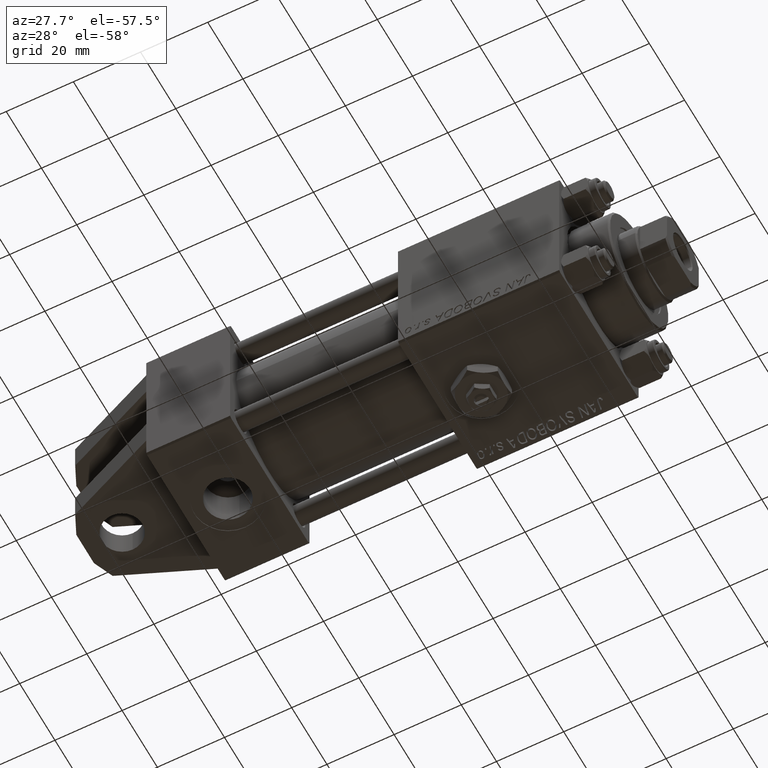
[diagram: clean part render]
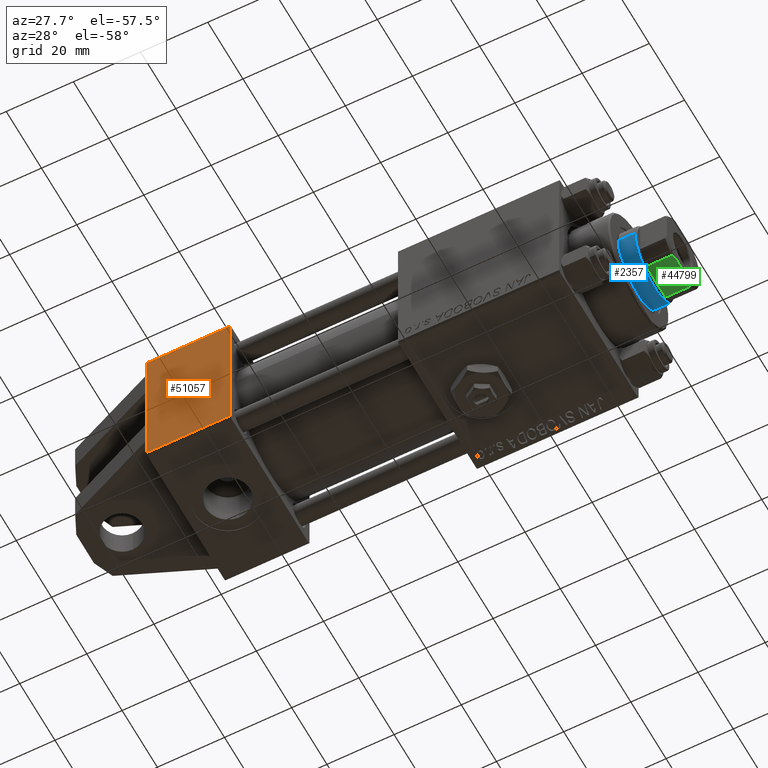
[diagram: same view with three faces highlighted in distinct colors, each labeled with its STEP entity id]
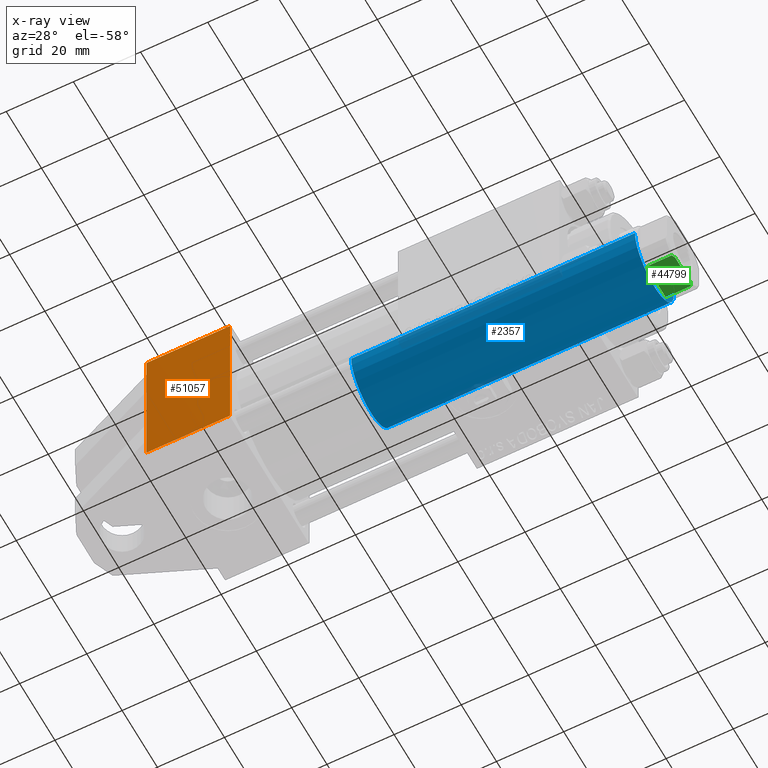
[diagram: x-ray of the same camera — body ghosted, the three highlighted faces saturated]
A machine part, auxiliary view with three faces highlighted in distinct colors.
The next image is the same camera in x-ray (body ghosted, the three faces saturated) — at least one of them is partly hidden behind the body in this view.
Their STEP definitions:

[orange] entity #51057 — the highlighted planar face has unit normal (0, -1, -0).
#508 = CARTESIAN_POINT ( 'NONE',  ( 0.000000000000000000, -21.99999999999998579, -22.50000000000000711 ) ) ;
#1313 = VERTEX_POINT ( 'NONE', #51101 ) ;
#1370 = CARTESIAN_POINT ( 'NONE',  ( 25.00000000000000000, 22.50000000000000000, -22.49999999999999645 ) ) ;
#1999 = VERTEX_POINT ( 'NONE', #12672 ) ;
#2613 = FACE_OUTER_BOUND ( 'NONE', #47206, .T. ) ;
#2723 = VERTEX_POINT ( 'NONE', #24300 ) ;
#2766 = ORIENTED_EDGE ( 'NONE', *, *, #23690, .F. ) ;
#5197 = LINE ( 'NONE', #20369, #19236 ) ;
#5562 = LINE ( 'NONE', #16544, #6047 ) ;
#6047 = VECTOR ( 'NONE', #41105, 1000.000000000000000 ) ;
#6101 = VECTOR ( 'NONE', #41876, 1000.000000000000000 ) ;
#6674 = ORIENTED_EDGE ( 'NONE', *, *, #25922, .T. ) ;
#6809 = PLANE ( 'NONE',  #18628 ) ;
#7522 = EDGE_CURVE ( 'NONE', #49364, #38472, #28178, .T. ) ;
#8836 = DIRECTION ( 'NONE',  ( 0.000000000000000000, -1.000000000000000000, -2.312964634635742957E-16 ) ) ;
#9394 = CARTESIAN_POINT ( 'NONE',  ( 0.000000000000000000, -16.00000000000000000, -22.50000000000000711 ) ) ;
#10464 = CARTESIAN_POINT ( 'NONE',  ( 0.000000000000000000, -8.000000000000000000, -22.50000000000000711 ) ) ;
#12672 = CARTESIAN_POINT ( 'NONE',  ( 25.00000000000000000, 21.99999999999999289, -22.49999999999999645 ) ) ;
#14785 = ORIENTED_EDGE ( 'NONE', *, *, #17932, .T. ) ;
#15712 = DIRECTION ( 'NONE',  ( -1.000000000000000000, 0.000000000000000000, 0.000000000000000000 ) ) ;
#16544 = CARTESIAN_POINT ( 'NONE',  ( 0.000000000000000000, 22.50000000000000000, -22.49999999999999645 ) ) ;
#17886 = CARTESIAN_POINT ( 'NONE',  ( 0.000000000000000000, -21.99999999999997158, -22.50000000000000711 ) ) ;
#17932 = EDGE_CURVE ( 'NONE', #49364, #40966, #44671, .T. ) ;
#18310 = DIRECTION ( 'NONE',  ( 0.000000000000000000, 2.312964634635742957E-16, -1.000000000000000000 ) ) ;
#18628 = AXIS2_PLACEMENT_3D ( 'NONE', #38422, #18310, #26143 ) ;
#19180 = VECTOR ( 'NONE', #8836, 1000.000000000000000 ) ;
#19236 = VECTOR ( 'NONE', #21145, 1000.000000000000000 ) ;
#19719 = ORIENTED_EDGE ( 'NONE', *, *, #50695, .T. ) ;
#19830 = CARTESIAN_POINT ( 'NONE',  ( 0.000000000000000000, 21.99999999999999289, -22.49999999999999645 ) ) ;
#20029 = VERTEX_POINT ( 'NONE', #24650 ) ;
#20369 = CARTESIAN_POINT ( 'NONE',  ( 25.00000000000000000, 21.99999999999999289, -22.49999999999999645 ) ) ;
#20403 = VECTOR ( 'NONE', #15712, 1000.000000000000000 ) ;
#21145 = DIRECTION ( 'NONE',  ( 1.000000000000000000, 0.000000000000000000, 0.000000000000000000 ) ) ;
#22489 = VECTOR ( 'NONE', #31420, 1000.000000000000000 ) ;
#23690 = EDGE_CURVE ( 'NONE', #1313, #20029, #26734, .T. ) ;
#24300 = CARTESIAN_POINT ( 'NONE',  ( 25.00000000000000000, -21.99999999999997158, -22.50000000000000711 ) ) ;
#24528 = CARTESIAN_POINT ( 'NONE',  ( 0.000000000000000000, 22.50000000000000000, -22.49999999999999645 ) ) ;
#24650 = CARTESIAN_POINT ( 'NONE',  ( 0.000000000000000000, 8.000000000000003553, -22.50000000000000000 ) ) ;
#25922 = EDGE_CURVE ( 'NONE', #26655, #1999, #5197, .T. ) ;
#26143 = DIRECTION ( 'NONE',  ( 0.000000000000000000, 1.000000000000000000, 2.312964634635742957E-16 ) ) ;
#26655 = VERTEX_POINT ( 'NONE', #19830 ) ;
#26734 = LINE ( 'NONE', #42657, #22489 ) ;
#28178 = LINE ( 'NONE', #24528, #19180 ) ;
#29129 = CARTESIAN_POINT ( 'NONE',  ( 0.000000000000000000, -16.00000000000000000, -22.50000000000000711 ) ) ;
#30536 = LINE ( 'NONE', #41500, #39685 ) ;
#31420 = DIRECTION ( 'NONE',  ( -0.000000000000000000, -1.000000000000000000, -0.000000000000000000 ) ) ;
#32593 = ORIENTED_EDGE ( 'NONE', *, *, #40048, .T. ) ;
#32935 = DIRECTION ( 'NONE',  ( -0.000000000000000000, 1.000000000000000000, -0.000000000000000000 ) ) ;
#34591 = EDGE_CURVE ( 'NONE', #20029, #40966, #5562, .T. ) ;
#37192 = LINE ( 'NONE', #1370, #6101 ) ;
#37587 = DIRECTION ( 'NONE',  ( 0.000000000000000000, -1.000000000000000000, -2.312964634635742957E-16 ) ) ;
#38422 = CARTESIAN_POINT ( 'NONE',  ( 25.00000000000000000, 22.50000000000000000, -22.49999999999999645 ) ) ;
#38472 = VERTEX_POINT ( 'NONE', #17886 ) ;
#39685 = VECTOR ( 'NONE', #37587, 1000.000000000000000 ) ;
#40048 = EDGE_CURVE ( 'NONE', #2723, #38472, #51504, .T. ) ;
#40966 = VERTEX_POINT ( 'NONE', #10464 ) ;
#41105 = DIRECTION ( 'NONE',  ( 0.000000000000000000, -1.000000000000000000, -2.312964634635742957E-16 ) ) ;
#41500 = CARTESIAN_POINT ( 'NONE',  ( 0.000000000000000000, 22.50000000000000000, -22.49999999999999645 ) ) ;
#41876 = DIRECTION ( 'NONE',  ( 0.000000000000000000, -1.000000000000000000, -2.312964634635742957E-16 ) ) ;
#42657 = CARTESIAN_POINT ( 'NONE',  ( 0.000000000000000000, 16.00000000000000000, -22.50000000000000711 ) ) ;
#42688 = EDGE_CURVE ( 'NONE', #26655, #1313, #30536, .T. ) ;
#42902 = VECTOR ( 'NONE', #32935, 1000.000000000000000 ) ;
#44569 = ORIENTED_EDGE ( 'NONE', *, *, #7522, .F. ) ;
#44671 = LINE ( 'NONE', #9394, #42902 ) ;
#46756 = ORIENTED_EDGE ( 'NONE', *, *, #42688, .F. ) ;
#47206 = EDGE_LOOP ( 'NONE', ( #46756, #6674, #19719, #32593, #44569, #14785, #47915, #2766 ) ) ;
#47915 = ORIENTED_EDGE ( 'NONE', *, *, #34591, .F. ) ;
#49364 = VERTEX_POINT ( 'NONE', #29129 ) ;
#50695 = EDGE_CURVE ( 'NONE', #1999, #2723, #37192, .T. ) ;
#51057 = ADVANCED_FACE ( 'NONE', ( #2613 ), #6809, .T. ) ;
#51101 = CARTESIAN_POINT ( 'NONE',  ( 0.000000000000000000, 16.00000000000000000, -22.50000000000000711 ) ) ;
#51504 = LINE ( 'NONE', #508, #20403 ) ;

[blue] entity #2357 — the highlighted cylindrical surface (partial cylindrical patch) has radius 11 mm, axis along (-1, 0, 0).
#1183 = VERTEX_POINT ( 'NONE', #11131 ) ;
#1211 = CIRCLE ( 'NONE', #17916, 11.00000000000000000 ) ;
#2283 = CARTESIAN_POINT ( 'NONE',  ( 0.000000000000000000, 0.000000000000000000, 30.00000000000000000 ) ) ;
#2357 = ADVANCED_FACE ( 'NONE', ( #31196 ), #43946, .T. ) ;
#3795 = ORIENTED_EDGE ( 'NONE', *, *, #14462, .T. ) ;
#5591 = LINE ( 'NONE', #37996, #40357 ) ;
#7650 = DIRECTION ( 'NONE',  ( -0.000000000000000000, -0.000000000000000000, -1.000000000000000000 ) ) ;
#8145 = AXIS2_PLACEMENT_3D ( 'NONE', #39783, #7650, #11839 ) ;
#8217 = ORIENTED_EDGE ( 'NONE', *, *, #26946, .F. ) ;
#11131 = CARTESIAN_POINT ( 'NONE',  ( -11.00000000000000000, 0.000000000000000000, 114.5000000000000142 ) ) ;
#11839 = DIRECTION ( 'NONE',  ( -1.000000000000000000, 0.000000000000000000, 0.000000000000000000 ) ) ;
#11919 = DIRECTION ( 'NONE',  ( 0.000000000000000000, 0.000000000000000000, -1.000000000000000000 ) ) ;
#14244 = ORIENTED_EDGE ( 'NONE', *, *, #37365, .T. ) ;
#14309 = VERTEX_POINT ( 'NONE', #21124 ) ;
#14462 = EDGE_CURVE ( 'NONE', #14309, #25743, #38642, .T. ) ;
#16344 = DIRECTION ( 'NONE',  ( 1.000000000000000000, 0.000000000000000000, 0.000000000000000000 ) ) ;
#17354 = DIRECTION ( 'NONE',  ( -0.000000000000000000, -0.000000000000000000, -1.000000000000000000 ) ) ;
#17916 = AXIS2_PLACEMENT_3D ( 'NONE', #39855, #11919, #16344 ) ;
#19893 = ORIENTED_EDGE ( 'NONE', *, *, #39477, .T. ) ;
#20531 = LINE ( 'NONE', #40646, #33433 ) ;
#21124 = CARTESIAN_POINT ( 'NONE',  ( 11.00000000000000000, 1.347111479062088405E-15, 30.00000000000000000 ) ) ;
#21302 = EDGE_LOOP ( 'NONE', ( #19893, #14244, #3795, #8217 ) ) ;
#23747 = CARTESIAN_POINT ( 'NONE',  ( 11.00000000000000000, 1.347111479062088405E-15, 114.5000000000000142 ) ) ;
#25743 = VERTEX_POINT ( 'NONE', #34007 ) ;
#26946 = EDGE_CURVE ( 'NONE', #1183, #25743, #20531, .T. ) ;
#28584 = AXIS2_PLACEMENT_3D ( 'NONE', #2283, #46196, #42781 ) ;
#28624 = DIRECTION ( 'NONE',  ( -0.000000000000000000, -0.000000000000000000, -1.000000000000000000 ) ) ;
#31196 = FACE_OUTER_BOUND ( 'NONE', #21302, .T. ) ;
#33433 = VECTOR ( 'NONE', #28624, 1000.000000000000000 ) ;
#34007 = CARTESIAN_POINT ( 'NONE',  ( -11.00000000000000000, 0.000000000000000000, 30.00000000000000000 ) ) ;
#37365 = EDGE_CURVE ( 'NONE', #40390, #14309, #5591, .T. ) ;
#37996 = CARTESIAN_POINT ( 'NONE',  ( 11.00000000000000000, 1.347111479062088405E-15, 115.0000000000000000 ) ) ;
#38642 = CIRCLE ( 'NONE', #28584, 11.00000000000000000 ) ;
#39477 = EDGE_CURVE ( 'NONE', #1183, #40390, #1211, .T. ) ;
#39783 = CARTESIAN_POINT ( 'NONE',  ( 0.000000000000000000, 0.000000000000000000, 115.0000000000000000 ) ) ;
#39855 = CARTESIAN_POINT ( 'NONE',  ( 0.000000000000000000, 0.000000000000000000, 114.5000000000000142 ) ) ;
#40357 = VECTOR ( 'NONE', #17354, 1000.000000000000000 ) ;
#40390 = VERTEX_POINT ( 'NONE', #23747 ) ;
#40646 = CARTESIAN_POINT ( 'NONE',  ( -11.00000000000000000, 0.000000000000000000, 115.0000000000000000 ) ) ;
#42781 = DIRECTION ( 'NONE',  ( 1.000000000000000000, 0.000000000000000000, 0.000000000000000000 ) ) ;
#43946 = CYLINDRICAL_SURFACE ( 'NONE', #8145, 11.00000000000000000 ) ;
#46196 = DIRECTION ( 'NONE',  ( 0.000000000000000000, 0.000000000000000000, 1.000000000000000000 ) ) ;

[green] entity #44799 — the highlighted planar face has unit normal (0, -0, 1).
#185 = CARTESIAN_POINT ( 'NONE',  ( 5.408326913195989682, 8.999999999999998224, -0.001000000000001000089 ) ) ;
#443 = PLANE ( 'NONE',  #24726 ) ;
#766 = CARTESIAN_POINT ( 'NONE',  ( -4.714305797500250250, 8.999999999999998224, 122.8450817439748448 ) ) ;
#1040 = ORIENTED_EDGE ( 'NONE', *, *, #34655, .T. ) ;
#1805 = CARTESIAN_POINT ( 'NONE',  ( -4.358898943540671311, 8.999999999999998224, 123.0000000000000000 ) ) ;
#2248 = VERTEX_POINT ( 'NONE', #6377 ) ;
#4384 = FACE_OUTER_BOUND ( 'NONE', #49565, .T. ) ;
#5155 = DIRECTION ( 'NONE',  ( -0.000000000000000000, -0.000000000000000000, 1.000000000000000000 ) ) ;
#5320 = B_SPLINE_CURVE_WITH_KNOTS ( 'NONE', 3,
 ( #5739, #21692, #766, #1805 ),
 .UNSPECIFIED., .F., .F.,
 ( 4, 4 ),
 ( 0.000000000000000000, 0.001162453897363196044 ),
 .UNSPECIFIED. ) ;
#5739 = CARTESIAN_POINT ( 'NONE',  ( -5.408326913195988794, 8.999999999999998224, 122.5000000000000000 ) ) ;
#6377 = CARTESIAN_POINT ( 'NONE',  ( 5.408326913195989682, 8.999999999999998224, 122.4999999999999716 ) ) ;
#6411 = CARTESIAN_POINT ( 'NONE',  ( -5.408326913195988794, 8.999999999999998224, 122.5000000000000000 ) ) ;
#7227 = EDGE_CURVE ( 'NONE', #34235, #41689, #22882, .T. ) ;
#7268 = VERTEX_POINT ( 'NONE', #6411 ) ;
#7485 = CARTESIAN_POINT ( 'NONE',  ( -5.408326913195987018, 8.999999999999998224, 115.0000000000000284 ) ) ;
#8693 = EDGE_CURVE ( 'NONE', #34235, #2248, #11402, .T. ) ;
#9921 = CARTESIAN_POINT ( 'NONE',  ( -5.408326913195988794, 8.999999999999998224, -0.001000000000001000089 ) ) ;
#10485 = CARTESIAN_POINT ( 'NONE',  ( 5.063687070142423252, 8.999999999999998224, 122.6775166608138932 ) ) ;
#10531 = DIRECTION ( 'NONE',  ( -1.000000000000000000, -0.000000000000000000, -0.000000000000000000 ) ) ;
#11402 = B_SPLINE_CURVE_WITH_KNOTS ( 'NONE', 3,
 ( #14416, #21721, #10485, #26155 ),
 .UNSPECIFIED., .F., .F.,
 ( 4, 4 ),
 ( 8.673617379884035472E-19, 0.001162453897363272806 ),
 .UNSPECIFIED. ) ;
#13473 = CARTESIAN_POINT ( 'NONE',  ( 4.358898943540597593, 8.999999999999998224, 123.0000000000000000 ) ) ;
#14416 = CARTESIAN_POINT ( 'NONE',  ( 4.358898943540597593, 8.999999999999998224, 123.0000000000000000 ) ) ;
#16178 = VERTEX_POINT ( 'NONE', #24808 ) ;
#18171 = CARTESIAN_POINT ( 'NONE',  ( -9.000000000000003553, 8.999999999999998224, 123.0000000000000000 ) ) ;
#18266 = VECTOR ( 'NONE', #38408, 1000.000000000000000 ) ;
#18463 = EDGE_CURVE ( 'NONE', #16178, #2248, #40699, .T. ) ;
#19249 = EDGE_CURVE ( 'NONE', #34126, #7268, #37896, .T. ) ;
#20331 = CARTESIAN_POINT ( 'NONE',  ( -9.000000000000003553, 8.999999999999998224, 123.0000000000000000 ) ) ;
#20602 = ORIENTED_EDGE ( 'NONE', *, *, #18463, .F. ) ;
#21692 = CARTESIAN_POINT ( 'NONE',  ( -5.063687070142449009, 8.999999999999998224, 122.6775166608139216 ) ) ;
#21721 = CARTESIAN_POINT ( 'NONE',  ( 4.714305797500202289, 8.999999999999998224, 122.8450817439748306 ) ) ;
#22882 = LINE ( 'NONE', #18171, #36682 ) ;
#23234 = DIRECTION ( 'NONE',  ( 0.000000000000000000, -1.000000000000000000, 0.000000000000000000 ) ) ;
#23486 = DIRECTION ( 'NONE',  ( 0.000000000000000000, -0.000000000000000000, -1.000000000000000000 ) ) ;
#24726 = AXIS2_PLACEMENT_3D ( 'NONE', #20331, #23234, #23486 ) ;
#24808 = CARTESIAN_POINT ( 'NONE',  ( 5.408326913195989682, 8.999999999999998224, 115.0000000000000284 ) ) ;
#26155 = CARTESIAN_POINT ( 'NONE',  ( 5.408326913195989682, 8.999999999999998224, 122.4999999999999716 ) ) ;
#33790 = CARTESIAN_POINT ( 'NONE',  ( -9.000000000000003553, 8.999999999999998224, 115.0000000000000000 ) ) ;
#34126 = VERTEX_POINT ( 'NONE', #7485 ) ;
#34235 = VERTEX_POINT ( 'NONE', #13473 ) ;
#34655 = EDGE_CURVE ( 'NONE', #16178, #34126, #41874, .T. ) ;
#35268 = VECTOR ( 'NONE', #10531, 1000.000000000000000 ) ;
#36682 = VECTOR ( 'NONE', #38029, 1000.000000000000000 ) ;
#37498 = ORIENTED_EDGE ( 'NONE', *, *, #7227, .F. ) ;
#37653 = ORIENTED_EDGE ( 'NONE', *, *, #19249, .T. ) ;
#37896 = LINE ( 'NONE', #9921, #18266 ) ;
#38029 = DIRECTION ( 'NONE',  ( -1.000000000000000000, -0.000000000000000000, -0.000000000000000000 ) ) ;
#38408 = DIRECTION ( 'NONE',  ( -0.000000000000000000, -0.000000000000000000, 1.000000000000000000 ) ) ;
#40195 = EDGE_CURVE ( 'NONE', #7268, #41689, #5320, .T. ) ;
#40699 = LINE ( 'NONE', #185, #47882 ) ;
#41689 = VERTEX_POINT ( 'NONE', #41810 ) ;
#41810 = CARTESIAN_POINT ( 'NONE',  ( -4.358898943540671311, 8.999999999999998224, 123.0000000000000000 ) ) ;
#41874 = LINE ( 'NONE', #33790, #35268 ) ;
#43917 = ORIENTED_EDGE ( 'NONE', *, *, #8693, .T. ) ;
#44799 = ADVANCED_FACE ( 'NONE', ( #4384 ), #443, .F. ) ;
#47882 = VECTOR ( 'NONE', #5155, 1000.000000000000000 ) ;
#48738 = ORIENTED_EDGE ( 'NONE', *, *, #40195, .T. ) ;
#49565 = EDGE_LOOP ( 'NONE', ( #37498, #43917, #20602, #1040, #37653, #48738 ) ) ;